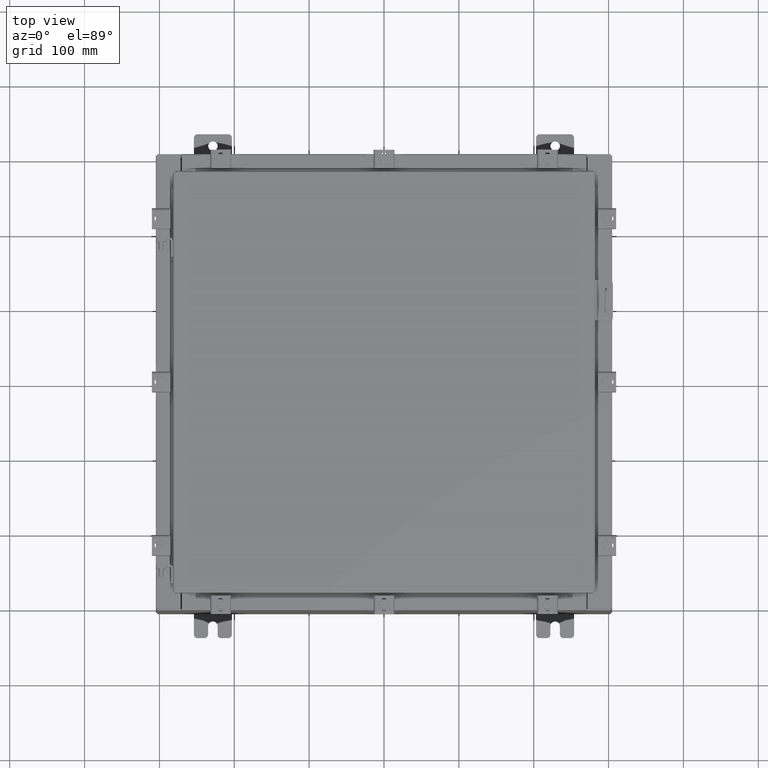
[diagram: clean part render]
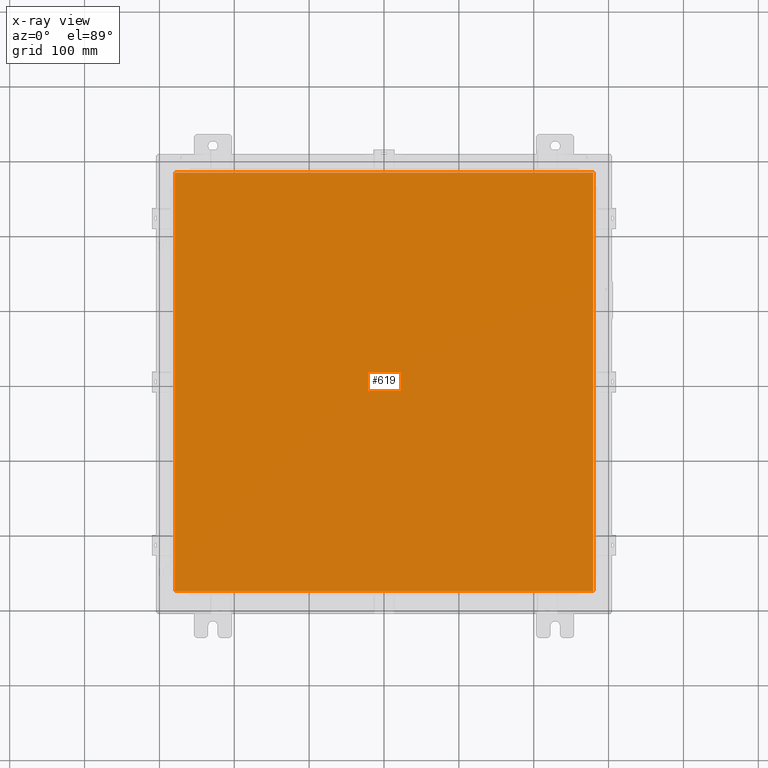
[diagram: x-ray — body ghosted, one internal face saturated and labeled with its STEP entity id]
A machine part, top view, then the same camera in x-ray: the body is ghosted and one INTERNAL B-rep face — a face not visible from any outside direction — is saturated and labeled: STEP entity #619.
In plain terms, the highlighted planar face has unit normal (0, 0, -1).
Its self-contained STEP definition (entity closure, byte-faithful):
#619 = ADVANCED_FACE ( 'NONE', ( #9325 ), #13373, .T. ) ;
#1838 = CARTESIAN_POINT ( 'NONE',  ( -11.00630000000000000, 11.00630000000000000, -0.07470000000000015500 ) ) ;
#3354 = VECTOR ( 'NONE', #6178, 39.37007874015748100 ) ;
#3548 = CARTESIAN_POINT ( 'NONE',  ( 11.00630000000000000, -11.00630000000000000, -0.07470000000000015500 ) ) ;
#3988 = EDGE_CURVE ( 'NONE', #20611, #11932, #14506, .T. ) ;
#4243 = EDGE_LOOP ( 'NONE', ( #21368, #13930, #11570, #11571 ) ) ;
#4257 = VERTEX_POINT ( 'NONE', #9381 ) ;
#4360 = CARTESIAN_POINT ( 'NONE',  ( 11.00630000000000000, -11.00630000000000000, -0.07470000000000015500 ) ) ;
#4711 = DIRECTION ( 'NONE',  ( 1.000000000000000000, -0.0000000000000000000, -0.0000000000000000000 ) ) ;
#4733 = VECTOR ( 'NONE', #13885, 39.37007874015748100 ) ;
#5682 = CARTESIAN_POINT ( 'NONE',  ( 11.00630000000000000, 11.00630000000000000, -0.07470000000000015500 ) ) ;
#6178 = DIRECTION ( 'NONE',  ( -1.000000000000000000, -0.0000000000000000000, -0.0000000000000000000 ) ) ;
#6406 = CARTESIAN_POINT ( 'NONE',  ( -11.00630000000000000, -11.00630000000000000, -0.07470000000000015500 ) ) ;
#8150 = LINE ( 'NONE', #1838, #16837 ) ;
#8513 = EDGE_CURVE ( 'NONE', #11932, #4257, #16676, .T. ) ;
#8672 = EDGE_CURVE ( 'NONE', #14146, #20611, #19156, .T. ) ;
#9036 = DIRECTION ( 'NONE',  ( -1.000000000000000000, 0.0000000000000000000, -0.0000000000000000000 ) ) ;
#9325 = FACE_OUTER_BOUND ( 'NONE', #4243, .T. ) ;
#9381 = CARTESIAN_POINT ( 'NONE',  ( -11.00630000000000000, 11.00630000000000000, -0.07470000000000015500 ) ) ;
#11570 = ORIENTED_EDGE ( 'NONE', *, *, #22358, .F. ) ;
#11571 = ORIENTED_EDGE ( 'NONE', *, *, #8513, .F. ) ;
#11932 = VERTEX_POINT ( 'NONE', #5682 ) ;
#13373 = PLANE ( 'NONE',  #21276 ) ;
#13885 = DIRECTION ( 'NONE',  ( 0.0000000000000000000, 1.000000000000000000, 0.0000000000000000000 ) ) ;
#13930 = ORIENTED_EDGE ( 'NONE', *, *, #8672, .F. ) ;
#14146 = VERTEX_POINT ( 'NONE', #6406 ) ;
#14499 = VECTOR ( 'NONE', #4711, 39.37007874015748100 ) ;
#14506 = LINE ( 'NONE', #3548, #4733 ) ;
#16575 = CARTESIAN_POINT ( 'NONE',  ( 11.00630000000000000, 11.00630000000000000, -0.07470000000000015500 ) ) ;
#16676 = LINE ( 'NONE', #16575, #3354 ) ;
#16837 = VECTOR ( 'NONE', #17495, 39.37007874015748100 ) ;
#17094 = DIRECTION ( 'NONE',  ( 0.0000000000000000000, 0.0000000000000000000, -1.000000000000000000 ) ) ;
#17495 = DIRECTION ( 'NONE',  ( 0.0000000000000000000, -1.000000000000000000, 0.0000000000000000000 ) ) ;
#19156 = LINE ( 'NONE', #22058, #14499 ) ;
#20611 = VERTEX_POINT ( 'NONE', #4360 ) ;
#21276 = AXIS2_PLACEMENT_3D ( 'NONE', #21884, #17094, #9036 ) ;
#21368 = ORIENTED_EDGE ( 'NONE', *, *, #3988, .F. ) ;
#21884 = CARTESIAN_POINT ( 'NONE',  ( 0.0000000000000000000, 0.0000000000000000000, -0.07470000000000015500 ) ) ;
#22058 = CARTESIAN_POINT ( 'NONE',  ( -11.00630000000000000, -11.00630000000000000, -0.07470000000000015500 ) ) ;
#22358 = EDGE_CURVE ( 'NONE', #4257, #14146, #8150, .T. ) ;